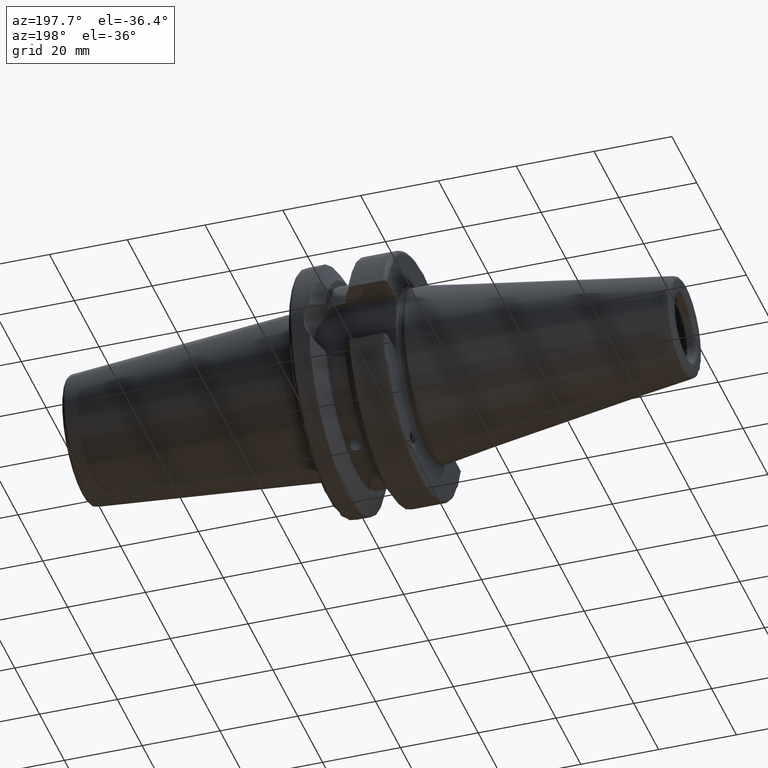
[diagram: clean part render]
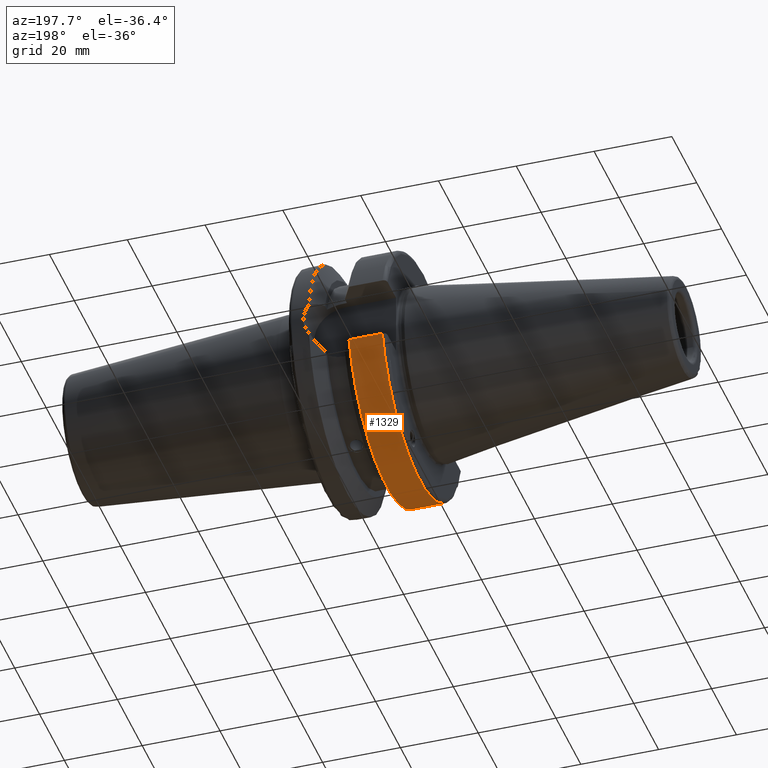
[diagram: same view with one face highlighted and labeled with its STEP entity id]
A machine part, auxiliary view. The second image highlights one B-rep face of the part: STEP entity #1329.
In plain terms, the highlighted cylindrical surface (partial cylindrical patch) has radius 31.5 mm, axis along (1, 0, 0).
Its self-contained STEP definition (entity closure, byte-faithful):
#81=CYLINDRICAL_SURFACE('',#1498,31.5);
#161=LINE('',#2441,#221);
#168=LINE('',#2508,#228);
#221=VECTOR('',#1812,10.);
#228=VECTOR('',#1857,10.);
#301=FACE_OUTER_BOUND('',#381,.T.);
#381=EDGE_LOOP('',(#1122,#1123,#1124,#1125));
#474=CIRCLE('',#1497,31.5000000000001);
#475=CIRCLE('',#1499,31.5);
#607=VERTEX_POINT('',#2429);
#608=VERTEX_POINT('',#2440);
#620=VERTEX_POINT('',#2500);
#621=VERTEX_POINT('',#2506);
#782=EDGE_CURVE('',#608,#607,#161,.T.);
#802=EDGE_CURVE('',#608,#620,#474,.T.);
#804=EDGE_CURVE('',#607,#621,#475,.T.);
#805=EDGE_CURVE('',#621,#620,#168,.T.);
#1122=ORIENTED_EDGE('',*,*,#782,.T.);
#1123=ORIENTED_EDGE('',*,*,#804,.T.);
#1124=ORIENTED_EDGE('',*,*,#805,.T.);
#1125=ORIENTED_EDGE('',*,*,#802,.F.);
#1329=ADVANCED_FACE('',(#301),#81,.T.);
#1497=AXIS2_PLACEMENT_3D('',#2501,#1851,#1852);
#1498=AXIS2_PLACEMENT_3D('',#2505,#1853,#1854);
#1499=AXIS2_PLACEMENT_3D('',#2507,#1855,#1856);
#1812=DIRECTION('',(-1.,0.,0.));
#1851=DIRECTION('center_axis',(1.,0.,0.));
#1852=DIRECTION('ref_axis',(0.,0.,-1.));
#1853=DIRECTION('center_axis',(1.,0.,0.));
#1854=DIRECTION('ref_axis',(0.,1.,0.));
#1855=DIRECTION('center_axis',(1.,0.,0.));
#1856=DIRECTION('ref_axis',(0.,0.,-1.));
#1857=DIRECTION('',(1.,0.,0.));
#2429=CARTESIAN_POINT('',(2.99999999999999,-30.4540227227866,-8.05));
#2440=CARTESIAN_POINT('',(11.5690363073382,-30.4540227227866,-8.05));
#2441=CARTESIAN_POINT('',(7.28451815366907,-30.4540227227866,-8.05));
#2500=CARTESIAN_POINT('',(11.5690363073382,30.4540227227866,-8.05));
#2501=CARTESIAN_POINT('Origin',(11.5690363073382,0.,0.));
#2505=CARTESIAN_POINT('Origin',(7.28451815366907,0.,0.));
#2506=CARTESIAN_POINT('',(2.99999999999999,30.4540227227866,-8.05));
#2507=CARTESIAN_POINT('Origin',(2.99999999999999,0.,0.));
#2508=CARTESIAN_POINT('',(7.28451815366907,30.4540227227866,-8.05));